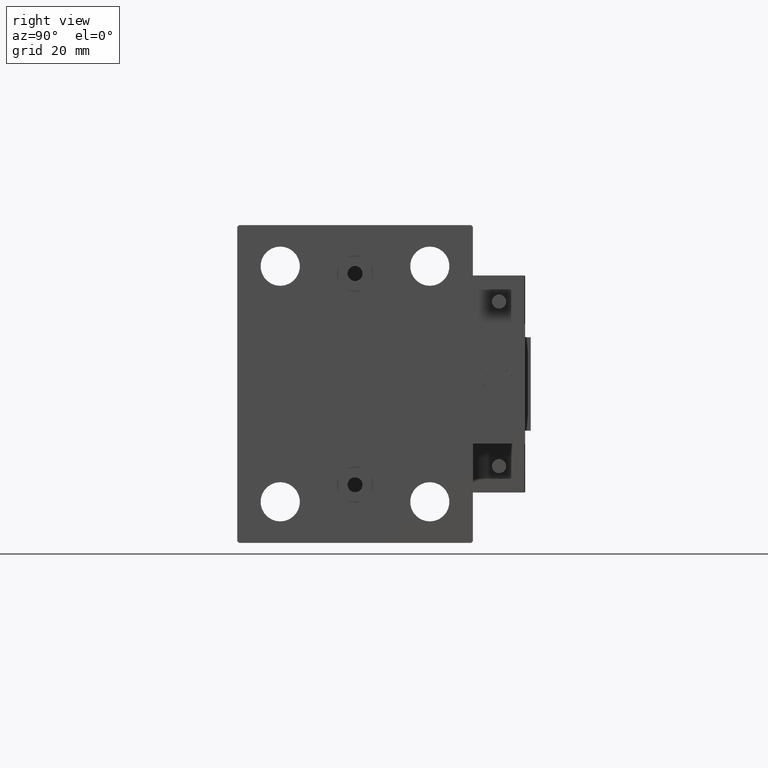
[diagram: clean part render]
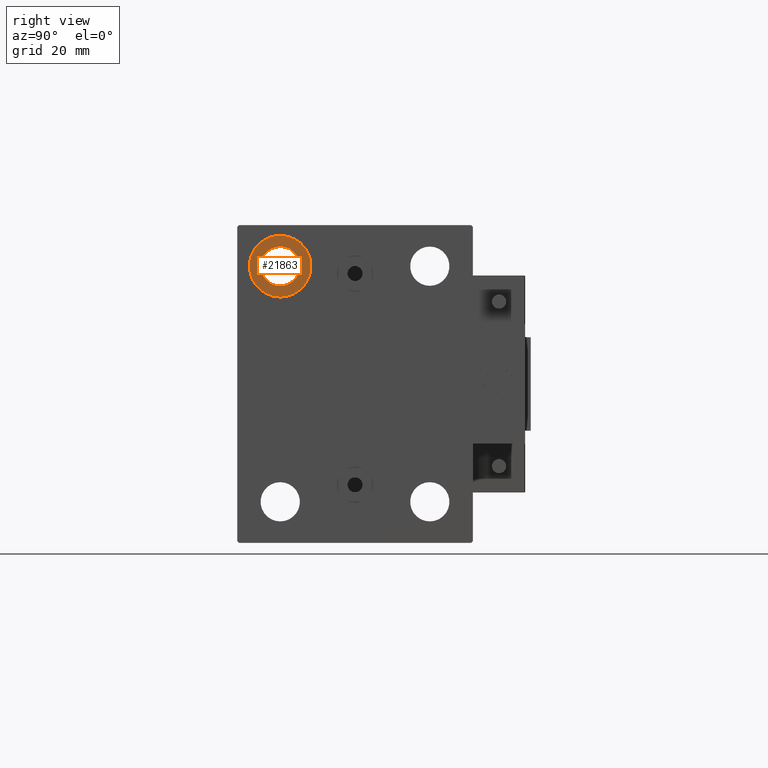
[diagram: same view with one face highlighted and labeled with its STEP entity id]
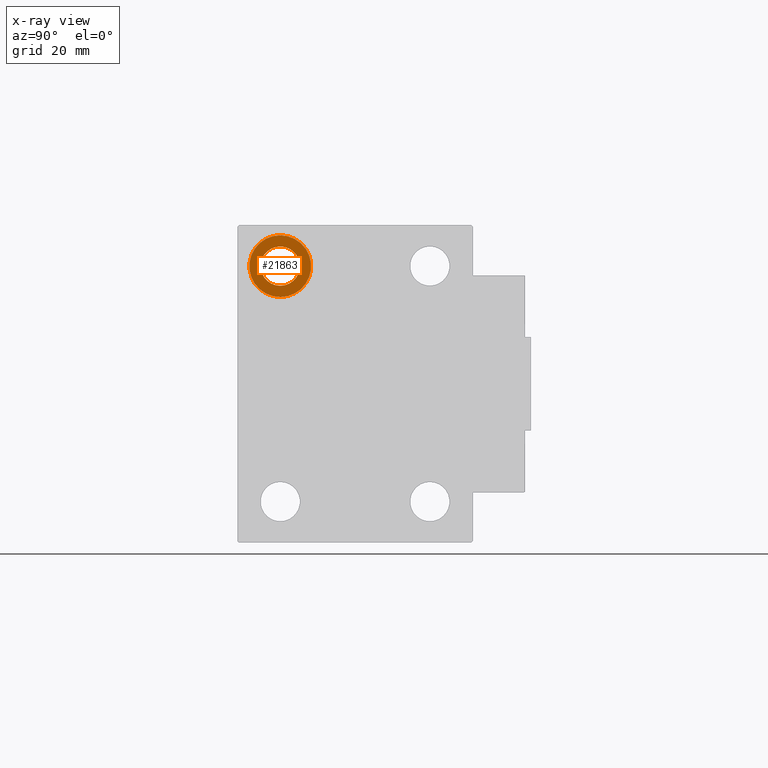
[diagram: x-ray of the same camera — body ghosted, the highlighted face saturated]
A machine part, right view. The second image highlights one B-rep face of the part: STEP entity #21863.
The next image is the same camera in x-ray: the body ghosted, the highlighted face saturated — about 0% of this face is hidden behind the body in this view.
In plain terms, the highlighted planar face has unit normal (1, 0, 0).
Its self-contained STEP definition (entity closure, byte-faithful):
#1170 = CIRCLE ( 'NONE', #47273, 5.249999999999997335 ) ;
#1237 = DIRECTION ( 'NONE',  ( -1.000000000000000000, -0.000000000000000000, -0.000000000000000000 ) ) ;
#1438 = DIRECTION ( 'NONE',  ( -1.000000000000000000, -0.000000000000000000, -0.000000000000000000 ) ) ;
#1647 = CIRCLE ( 'NONE', #11402, 8.249999999999992895 ) ;
#1998 = CARTESIAN_POINT ( 'NONE',  ( 72.00000000000001421, -19.99999999999999645, 31.50000000000000000 ) ) ;
#2005 = CARTESIAN_POINT ( 'NONE',  ( 72.00000000000001421, -19.99999999999999645, 31.50000000000000000 ) ) ;
#3766 = ORIENTED_EDGE ( 'NONE', *, *, #15455, .F. ) ;
#4401 = EDGE_LOOP ( 'NONE', ( #6559, #14880 ) ) ;
#5550 = DIRECTION ( 'NONE',  ( 0.000000000000000000, 0.000000000000000000, 1.000000000000000000 ) ) ;
#6199 = EDGE_CURVE ( 'NONE', #6901, #15446, #1647, .T. ) ;
#6559 = ORIENTED_EDGE ( 'NONE', *, *, #16642, .T. ) ;
#6901 = VERTEX_POINT ( 'NONE', #43516 ) ;
#7633 = AXIS2_PLACEMENT_3D ( 'NONE', #2005, #43783, #5550 ) ;
#9826 = CARTESIAN_POINT ( 'NONE',  ( 72.00000000000001421, -19.99999999999999645, 31.50000000000000000 ) ) ;
#11402 = AXIS2_PLACEMENT_3D ( 'NONE', #30613, #23274, #19213 ) ;
#11769 = CARTESIAN_POINT ( 'NONE',  ( 72.00000000000001421, 0.000000000000000000, 0.000000000000000000 ) ) ;
#12572 = CARTESIAN_POINT ( 'NONE',  ( 72.00000000000001421, -19.99999999999999645, 26.25000000000000355 ) ) ;
#12752 = FACE_BOUND ( 'NONE', #4401, .T. ) ;
#13669 = CIRCLE ( 'NONE', #48429, 5.249999999999997335 ) ;
#14880 = ORIENTED_EDGE ( 'NONE', *, *, #47603, .T. ) ;
#15446 = VERTEX_POINT ( 'NONE', #40497 ) ;
#15455 = EDGE_CURVE ( 'NONE', #15446, #6901, #40754, .T. ) ;
#16642 = EDGE_CURVE ( 'NONE', #32497, #25087, #1170, .T. ) ;
#19213 = DIRECTION ( 'NONE',  ( 0.000000000000000000, 0.000000000000000000, 1.000000000000000000 ) ) ;
#21863 = ADVANCED_FACE ( 'NONE', ( #31029, #12752 ), #35808, .T. ) ;
#23274 = DIRECTION ( 'NONE',  ( -1.000000000000000000, -0.000000000000000000, -0.000000000000000000 ) ) ;
#25087 = VERTEX_POINT ( 'NONE', #12572 ) ;
#25284 = DIRECTION ( 'NONE',  ( 0.000000000000000000, 0.000000000000000000, -1.000000000000000000 ) ) ;
#27231 = DIRECTION ( 'NONE',  ( 1.000000000000000000, 0.000000000000000000, -0.000000000000000000 ) ) ;
#30613 = CARTESIAN_POINT ( 'NONE',  ( 72.00000000000001421, -19.99999999999999645, 31.50000000000000000 ) ) ;
#31029 = FACE_OUTER_BOUND ( 'NONE', #34496, .T. ) ;
#32497 = VERTEX_POINT ( 'NONE', #48418 ) ;
#34496 = EDGE_LOOP ( 'NONE', ( #3766, #37953 ) ) ;
#35808 = PLANE ( 'NONE',  #36831 ) ;
#36831 = AXIS2_PLACEMENT_3D ( 'NONE', #11769, #27231, #42625 ) ;
#37953 = ORIENTED_EDGE ( 'NONE', *, *, #6199, .F. ) ;
#40497 = CARTESIAN_POINT ( 'NONE',  ( 72.00000000000001421, -19.99999999999999645, 23.25000000000000355 ) ) ;
#40754 = CIRCLE ( 'NONE', #7633, 8.249999999999992895 ) ;
#42625 = DIRECTION ( 'NONE',  ( 0.000000000000000000, 0.000000000000000000, 1.000000000000000000 ) ) ;
#43516 = CARTESIAN_POINT ( 'NONE',  ( 72.00000000000001421, -19.99999999999999645, 39.74999999999999289 ) ) ;
#43778 = DIRECTION ( 'NONE',  ( 0.000000000000000000, 0.000000000000000000, -1.000000000000000000 ) ) ;
#43783 = DIRECTION ( 'NONE',  ( -1.000000000000000000, -0.000000000000000000, -0.000000000000000000 ) ) ;
#47273 = AXIS2_PLACEMENT_3D ( 'NONE', #9826, #1438, #25284 ) ;
#47603 = EDGE_CURVE ( 'NONE', #25087, #32497, #13669, .T. ) ;
#48418 = CARTESIAN_POINT ( 'NONE',  ( 72.00000000000001421, -19.99999999999999645, 36.75000000000000000 ) ) ;
#48429 = AXIS2_PLACEMENT_3D ( 'NONE', #1998, #1237, #43778 ) ;